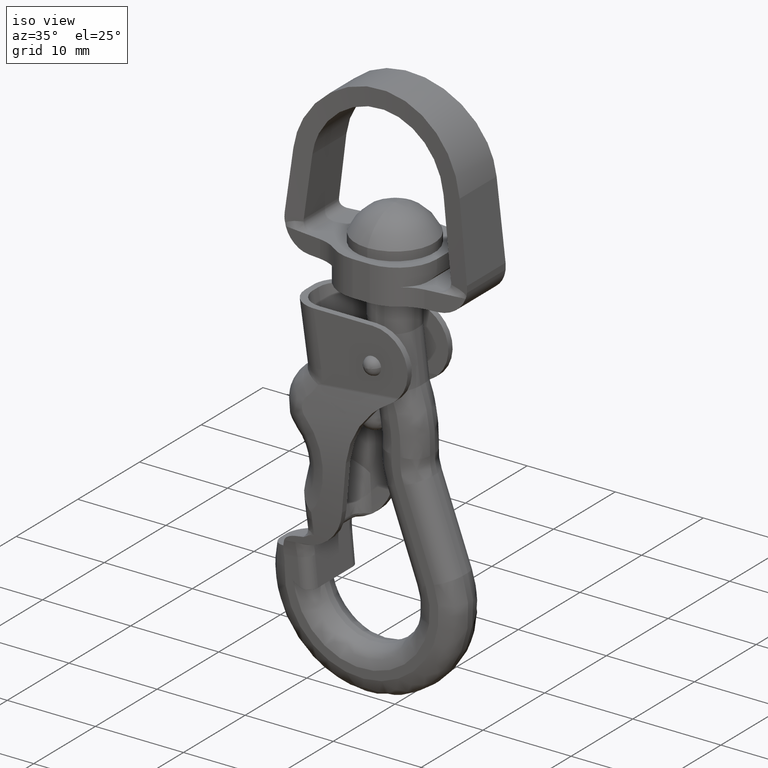
[diagram: clean part render]
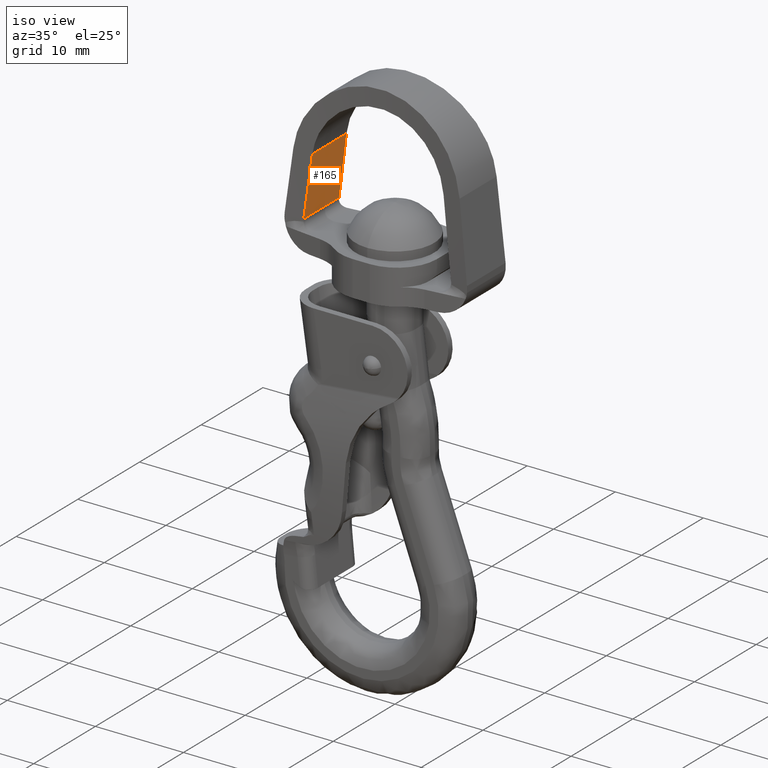
[diagram: same view with one face highlighted and labeled with its STEP entity id]
A machine part, iso view. The second image highlights one B-rep face of the part: STEP entity #165.
In plain terms, the highlighted planar face has unit normal (0.9913, 0, -0.1316).
Its self-contained STEP definition (entity closure, byte-faithful):
#165=ADVANCED_FACE('',(#511),#510,.T.);
#510=PLANE('',#2547);
#511=FACE_OUTER_BOUND('',#2548,.T.);
#2544=CARTESIAN_POINT('',(-7.34378733086E+00,-3.43312755469E+00,1.26724297568E+01));
#2545=DIRECTION('',(9.91304695876E-01,0.00000000000E+00,-1.31586473222E-01));
#2546=DIRECTION('',(-1.31586473222E-01,0.00000000000E+00,-9.91304695876E-01));
#2547=AXIS2_PLACEMENT_3D('',#2544,#2545,#2546);
#2548=EDGE_LOOP('',(#5630,#5631,#5632,#5633));
#5630=ORIENTED_EDGE('',*,*,#6669,.T.);
#5631=ORIENTED_EDGE('',*,*,#6650,.T.);
#5632=ORIENTED_EDGE('',*,*,#6679,.F.);
#5633=ORIENTED_EDGE('',*,*,#6697,.T.);
#6650=EDGE_CURVE('',#7335,#7328,#7336,.T.);
#6669=EDGE_CURVE('',#7465,#7335,#7466,.T.);
#6679=EDGE_CURVE('',#7533,#7328,#7534,.T.);
#6697=EDGE_CURVE('',#7533,#7465,#7651,.T.);
#7328=VERTEX_POINT('',#10905);
#7335=VERTEX_POINT('',#10948);
#7336=(BOUNDED_CURVE() B_SPLINE_CURVE(2,(#10949,#10950,#10951),.UNSPECIFIED.,.F.,.F.) B_SPLINE_CURVE_WITH_KNOTS((3,3),(-4.82977201644E+00,-4.81692190997E+00),.UNSPECIFIED.) CURVE() GEOMETRIC_REPRESENTATION_ITEM() RATIONAL_B_SPLINE_CURVE((1.00000000000E+00,9.99979359416E-01,1.00000000000E+00)) REPRESENTATION_ITEM('') );
#7465=VERTEX_POINT('',#11098);
#7466=LINE('',#11099,#11100);
#7533=VERTEX_POINT('',#11149);
#7534=LINE('',#11150,#11151);
#7651=(BOUNDED_CURVE() B_SPLINE_CURVE(2,(#11310,#11311,#11312),.UNSPECIFIED.,.F.,.F.) B_SPLINE_CURVE_WITH_KNOTS((3,3),(-1.46626339721E+00,-1.45341329074E+00),.UNSPECIFIED.) CURVE() GEOMETRIC_REPRESENTATION_ITEM() RATIONAL_B_SPLINE_CURVE((1.00000000000E+00,9.99979359416E-01,1.00000000000E+00)) REPRESENTATION_ITEM('') );
#10905=CARTESIAN_POINT('',(-7.43478521907E+00,2.75955378937E+00,1.19868985492E+01));
#10948=CARTESIAN_POINT('',(-8.34476410110E+00,2.86093962891E+00,5.13158647322E+00));
#10949=CARTESIAN_POINT('',(-8.34476410110E+00,2.86093962891E+00,5.13158647322E+00));
#10950=CARTESIAN_POINT('',(-7.89010036927E+00,2.80732333753E+00,8.55678878596E+00));
#10951=CARTESIAN_POINT('',(-7.43478521907E+00,2.75955378937E+00,1.19868985492E+01));
#11098=CARTESIAN_POINT('',(-8.34476410110E+00,-2.86093962890E+00,5.13158647322E+00));
#11099=CARTESIAN_POINT('',(-8.34476410110E+00,-2.86093962890E+00,5.13158647322E+00));
#11100=VECTOR('',#11101,5.72187925781E+00);
#11101=DIRECTION('',(0.00000000000E+00,1.00000000000E+00,0.00000000000E+00));
#11149=CARTESIAN_POINT('',(-7.43478521907E+00,-2.75955378937E+00,1.19868985492E+01));
#11150=CARTESIAN_POINT('',(-7.43478521907E+00,-2.75955378937E+00,1.19868985492E+01));
#11151=VECTOR('',#11152,5.51910757874E+00);
#11152=DIRECTION('',(0.00000000000E+00,1.00000000000E+00,0.00000000000E+00));
#11310=CARTESIAN_POINT('',(-7.43478521907E+00,-2.75955378937E+00,1.19868985492E+01));
#11311=CARTESIAN_POINT('',(-7.89010036927E+00,-2.80732333753E+00,8.55678878596E+00));
#11312=CARTESIAN_POINT('',(-8.34476410110E+00,-2.86093962890E+00,5.13158647322E+00));